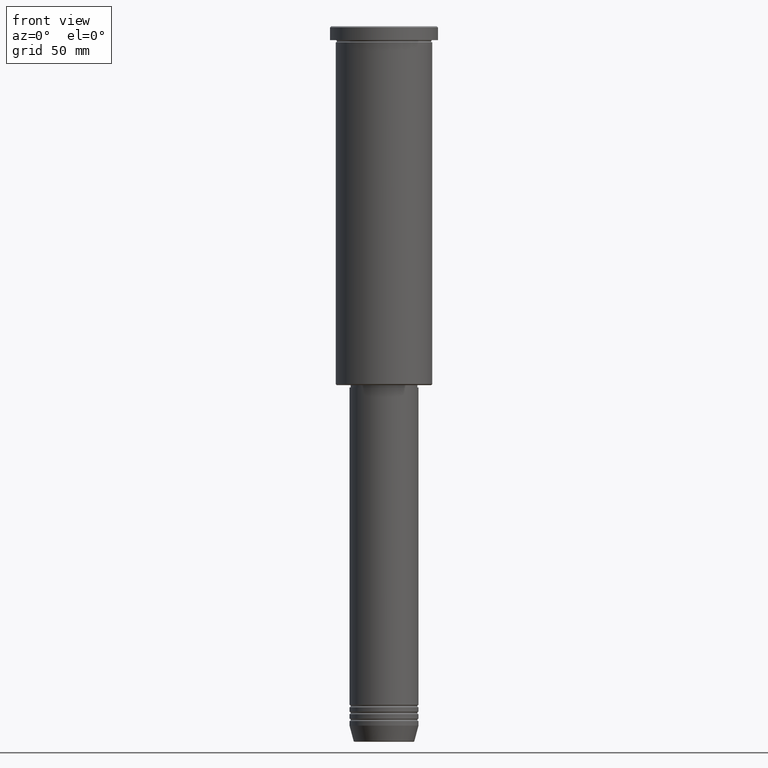
[diagram: clean part render]
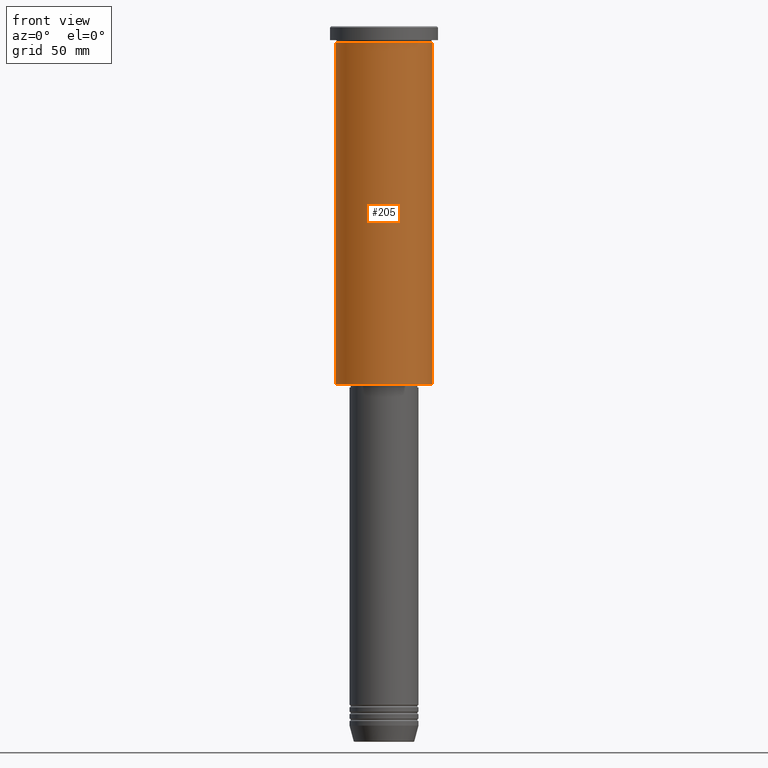
[diagram: same view with one face highlighted and labeled with its STEP entity id]
A machine part, front view. The second image highlights one B-rep face of the part: STEP entity #205.
In plain terms, the highlighted cylindrical surface (partial cylindrical patch) has radius 21 mm, axis along (-0, -0, 1).
Its self-contained STEP definition (entity closure, byte-faithful):
#35 = CARTESIAN_POINT ( 'NONE',  ( 21.00000000000000000, 0.000000000000000000, 0.000000000000000000 ) ) ;
#40 = VECTOR ( 'NONE', #319, 1000.000000000000000 ) ;
#59 = CARTESIAN_POINT ( 'NONE',  ( -21.00000000000000000, 2.571758278209441661E-15, -6.999999999999994671 ) ) ;
#61 = AXIS2_PLACEMENT_3D ( 'NONE', #985, #171, #885 ) ;
#73 = VERTEX_POINT ( 'NONE', #710 ) ;
#113 = CARTESIAN_POINT ( 'NONE',  ( -21.00000000000000000, 2.571758278209441661E-15, 0.000000000000000000 ) ) ;
#140 = VERTEX_POINT ( 'NONE', #797 ) ;
#171 = DIRECTION ( 'NONE',  ( -0.000000000000000000, -0.000000000000000000, 1.000000000000000000 ) ) ;
#177 = DIRECTION ( 'NONE',  ( 1.000000000000000000, 0.000000000000000000, 0.000000000000000000 ) ) ;
#178 = VERTEX_POINT ( 'NONE', #59 ) ;
#189 = EDGE_CURVE ( 'NONE', #178, #140, #451, .T. ) ;
#205 = ADVANCED_FACE ( 'NONE', ( #640 ), #365, .T. ) ;
#319 = DIRECTION ( 'NONE',  ( -0.000000000000000000, -0.000000000000000000, 1.000000000000000000 ) ) ;
#337 = VECTOR ( 'NONE', #483, 1000.000000000000000 ) ;
#359 = CIRCLE ( 'NONE', #1020, 21.00000000000000000 ) ;
#365 = CYLINDRICAL_SURFACE ( 'NONE', #61, 21.00000000000000000 ) ;
#390 = EDGE_CURVE ( 'NONE', #1057, #140, #1036, .T. ) ;
#441 = ORIENTED_EDGE ( 'NONE', *, *, #189, .F. ) ;
#451 = CIRCLE ( 'NONE', #934, 21.00000000000000000 ) ;
#483 = DIRECTION ( 'NONE',  ( -0.000000000000000000, -0.000000000000000000, 1.000000000000000000 ) ) ;
#497 = ORIENTED_EDGE ( 'NONE', *, *, #824, .T. ) ;
#555 = CARTESIAN_POINT ( 'NONE',  ( 0.000000000000000000, 0.000000000000000000, -6.999999999999994671 ) ) ;
#581 = CARTESIAN_POINT ( 'NONE',  ( 21.00000000000000000, 0.000000000000000000, -155.5000000000000000 ) ) ;
#640 = FACE_OUTER_BOUND ( 'NONE', #1133, .T. ) ;
#676 = LINE ( 'NONE', #113, #337 ) ;
#691 = ORIENTED_EDGE ( 'NONE', *, *, #1135, .F. ) ;
#710 = CARTESIAN_POINT ( 'NONE',  ( -21.00000000000000000, 2.571758278209441661E-15, -155.5000000000000000 ) ) ;
#784 = DIRECTION ( 'NONE',  ( -0.000000000000000000, -0.000000000000000000, 1.000000000000000000 ) ) ;
#797 = CARTESIAN_POINT ( 'NONE',  ( 21.00000000000000000, 0.000000000000000000, -6.999999999999994671 ) ) ;
#824 = EDGE_CURVE ( 'NONE', #73, #1057, #359, .T. ) ;
#858 = DIRECTION ( 'NONE',  ( -1.000000000000000000, 0.000000000000000000, 0.000000000000000000 ) ) ;
#885 = DIRECTION ( 'NONE',  ( 1.000000000000000000, 0.000000000000000000, 0.000000000000000000 ) ) ;
#934 = AXIS2_PLACEMENT_3D ( 'NONE', #555, #1151, #177 ) ;
#973 = ORIENTED_EDGE ( 'NONE', *, *, #390, .T. ) ;
#985 = CARTESIAN_POINT ( 'NONE',  ( 0.000000000000000000, 0.000000000000000000, 0.000000000000000000 ) ) ;
#1020 = AXIS2_PLACEMENT_3D ( 'NONE', #1161, #784, #858 ) ;
#1036 = LINE ( 'NONE', #35, #40 ) ;
#1057 = VERTEX_POINT ( 'NONE', #581 ) ;
#1133 = EDGE_LOOP ( 'NONE', ( #691, #497, #973, #441 ) ) ;
#1135 = EDGE_CURVE ( 'NONE', #73, #178, #676, .T. ) ;
#1151 = DIRECTION ( 'NONE',  ( -0.000000000000000000, -0.000000000000000000, 1.000000000000000000 ) ) ;
#1161 = CARTESIAN_POINT ( 'NONE',  ( 0.000000000000000000, 0.000000000000000000, -155.5000000000000000 ) ) ;